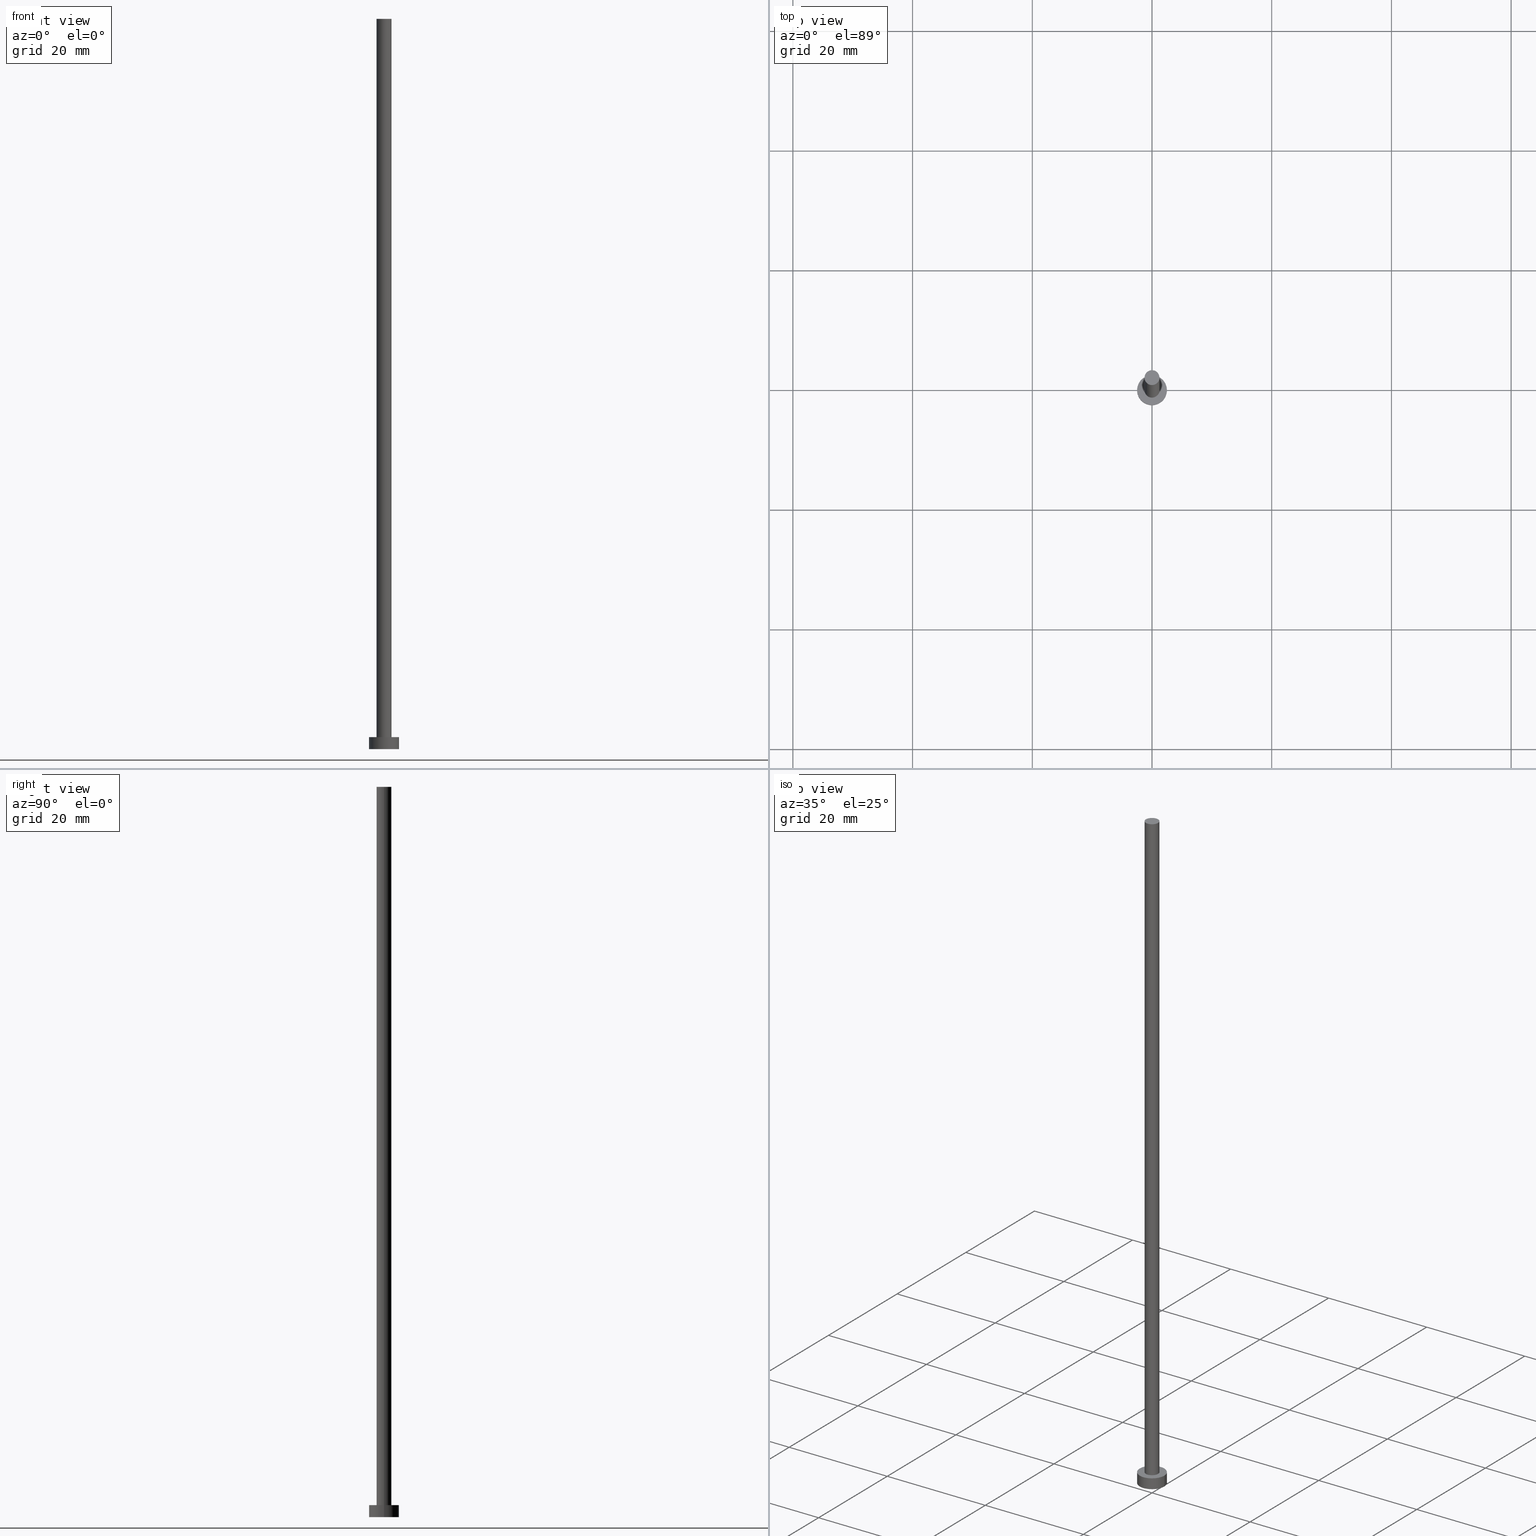
[diagram: canonical four-view strip — front | top / right | iso, engineering-drawing reading convention]
A machine part, canonical four-view strip (front | top / right | iso — engineering-drawing reading convention). The complete STEP part file that produces these views, byte-faithful:
ISO-10303-21;
HEADER;
FILE_DESCRIPTION (( 'STEP AP203' ),
    '1' );
FILE_NAME ('72eb.STEP',
    '2023-03-03T05:25:14',
    ( '' ),
    ( '' ),
    'SwSTEP 2.0',
    'SolidWorks 2019',
    '' );
FILE_SCHEMA (( 'CONFIG_CONTROL_DESIGN' ));
ENDSEC;

DATA;
#1 = CARTESIAN_POINT ( 'NONE',  ( 0.000000000000000000, 0.000000000000000000, 0.000000000000000000 ) ) ;
#2 = CC_DESIGN_DATE_AND_TIME_ASSIGNMENT ( #215, #195, ( #171 ) ) ;
#3 = CALENDAR_DATE ( 2023, 3, 3 ) ;
#4 = EDGE_LOOP ( 'NONE', ( #46, #227, #146, #90 ) ) ;
#5 = VERTEX_POINT ( 'NONE', #32 ) ;
#6 = CC_DESIGN_PERSON_AND_ORGANIZATION_ASSIGNMENT ( #68, #127, ( #255 ) ) ;
#7 = EDGE_LOOP ( 'NONE', ( #69, #182, #87, #202 ) ) ;
#8 = CIRCLE ( 'NONE', #151, 2.500000000000000000 ) ;
#9 = AXIS2_PLACEMENT_3D ( 'NONE', #34, #72, #148 ) ;
#10 = ORIENTED_EDGE ( 'NONE', *, *, #185, .F. ) ;
#11 = FACE_BOUND ( 'NONE', #110, .T. ) ;
#12 = DIRECTION ( 'NONE',  ( 1.000000000000000000, 0.000000000000000000, -0.000000000000000000 ) ) ;
#13 = CIRCLE ( 'NONE', #106, 1.250000000000000000 ) ;
#14 = FACE_OUTER_BOUND ( 'NONE', #224, .T. ) ;
#15 = DIRECTION ( 'NONE',  ( -0.000000000000000000, -0.000000000000000000, -1.000000000000000000 ) ) ;
#16 = CARTESIAN_POINT ( 'NONE',  ( -1.250000000000000000, 0.000000000000000000, 122.0000000000000000 ) ) ;
#17 = DIRECTION ( 'NONE',  ( 0.000000000000000000, 0.000000000000000000, 1.000000000000000000 ) ) ;
#18 = PERSON_AND_ORGANIZATION ( #199, #188 ) ;
#19 = CARTESIAN_POINT ( 'NONE',  ( 0.000000000000000000, 0.000000000000000000, 0.000000000000000000 ) ) ;
#20 = APPROVAL_PERSON_ORGANIZATION ( #24, #165, #84 ) ;
#21 = CALENDAR_DATE ( 2023, 3, 3 ) ;
#22 = ADVANCED_FACE ( 'NONE', ( #11, #73 ), #130, .T. ) ;
#23 = PRODUCT_DEFINITION_SHAPE ( 'NONE', 'NONE',  #171 ) ;
#24 = PERSON_AND_ORGANIZATION ( #199, #188 ) ;
#25 = PERSON_AND_ORGANIZATION_ROLE ( 'design_supplier' ) ;
#26 = EDGE_LOOP ( 'NONE', ( #163, #108 ) ) ;
#27 = EDGE_CURVE ( 'NONE', #248, #145, #8, .T. ) ;
#28 = APPROVAL_DATE_TIME ( #201, #165 ) ;
#29 = ORIENTED_EDGE ( 'NONE', *, *, #229, .T. ) ;
#30 = ORIENTED_EDGE ( 'NONE', *, *, #157, .T. ) ;
#31 = AXIS2_PLACEMENT_3D ( 'NONE', #19, #78, #103 ) ;
#32 = CARTESIAN_POINT ( 'NONE',  ( -1.250000000000000000, 0.000000000000000000, 2.000000000000000000 ) ) ;
#33 = EDGE_CURVE ( 'NONE', #5, #86, #253, .T. ) ;
#34 = CARTESIAN_POINT ( 'NONE',  ( 0.000000000000000000, 0.000000000000000000, 2.000000000000000000 ) ) ;
#35 = CARTESIAN_POINT ( 'NONE',  ( 0.000000000000000000, 0.000000000000000000, 2.000000000000000000 ) ) ;
#36 = APPROVAL_PERSON_ORGANIZATION ( #18, #48, #101 ) ;
#37 = CYLINDRICAL_SURFACE ( 'NONE', #9, 2.500000000000000000 ) ;
#38 = CC_DESIGN_PERSON_AND_ORGANIZATION_ASSIGNMENT ( #140, #43, ( #171 ) ) ;
#39 = CARTESIAN_POINT ( 'NONE',  ( 2.500000000000000000, 3.061616997868383141E-16, 2.000000000000000000 ) ) ;
#40 = PLANE ( 'NONE',  #98 ) ;
#41 = DIRECTION ( 'NONE',  ( 1.000000000000000000, 0.000000000000000000, 0.000000000000000000 ) ) ;
#42 = APPLICATION_PROTOCOL_DEFINITION ( 'international standard', 'config_control_design', 1994, #158 ) ;
#43 = PERSON_AND_ORGANIZATION_ROLE ( 'creator' ) ;
#44 = LOCAL_TIME ( 6, 25, 14.00000000000000000, #159 ) ;
#45 = COORDINATED_UNIVERSAL_TIME_OFFSET ( 1, 0, .AHEAD. ) ;
#46 = ORIENTED_EDGE ( 'NONE', *, *, #27, .F. ) ;
#47 = AXIS2_PLACEMENT_3D ( 'NONE', #79, #58, #194 ) ;
#48 = APPROVAL ( #119, 'NEUR�EN�' ) ;
#49 = CALENDAR_DATE ( 2023, 3, 3 ) ;
#50 = ORIENTED_EDGE ( 'NONE', *, *, #229, .F. ) ;
#51 = LOCAL_TIME ( 6, 25, 14.00000000000000000, #122 ) ;
#52 = DIRECTION ( 'NONE',  ( 1.000000000000000000, 0.000000000000000000, 0.000000000000000000 ) ) ;
#53 = CARTESIAN_POINT ( 'NONE',  ( -1.250000000000000000, 0.000000000000000000, 122.0000000000000000 ) ) ;
#54 = FACE_OUTER_BOUND ( 'NONE', #184, .T. ) ;
#55 = AXIS2_PLACEMENT_3D ( 'NONE', #114, #210, #154 ) ;
#56 = FACE_OUTER_BOUND ( 'NONE', #66, .T. ) ;
#57 = DIRECTION ( 'NONE',  ( 1.000000000000000000, 0.000000000000000000, 0.000000000000000000 ) ) ;
#58 = DIRECTION ( 'NONE',  ( 0.000000000000000000, 0.000000000000000000, 1.000000000000000000 ) ) ;
#59 = AXIS2_PLACEMENT_3D ( 'NONE', #205, #232, #12 ) ;
#60 = DIRECTION ( 'NONE',  ( 1.000000000000000000, 0.000000000000000000, 0.000000000000000000 ) ) ;
#61 = DIRECTION ( 'NONE',  ( 1.000000000000000000, 0.000000000000000000, 0.000000000000000000 ) ) ;
#62 = CARTESIAN_POINT ( 'NONE',  ( 0.000000000000000000, 0.000000000000000000, 0.000000000000000000 ) ) ;
#63 = LOCAL_TIME ( 6, 25, 14.00000000000000000, #183 ) ;
#64 = SECURITY_CLASSIFICATION_LEVEL ( 'unclassified' ) ;
#65 = ORIENTED_EDGE ( 'NONE', *, *, #77, .F. ) ;
#66 = EDGE_LOOP ( 'NONE', ( #65, #160, #30, #29 ) ) ;
#67 = CIRCLE ( 'NONE', #47, 2.500000000000000000 ) ;
#68 = PERSON_AND_ORGANIZATION ( #199, #188 ) ;
#69 = ORIENTED_EDGE ( 'NONE', *, *, #115, .F. ) ;
#70 = ORIENTED_EDGE ( 'NONE', *, *, #33, .F. ) ;
#71 = DIRECTION ( 'NONE',  ( -0.000000000000000000, -0.000000000000000000, -1.000000000000000000 ) ) ;
#72 = DIRECTION ( 'NONE',  ( -0.000000000000000000, -0.000000000000000000, -1.000000000000000000 ) ) ;
#73 = FACE_OUTER_BOUND ( 'NONE', #161, .T. ) ;
#74 = ADVANCED_FACE ( 'NONE', ( #56 ), #76, .T. ) ;
#75 = CYLINDRICAL_SURFACE ( 'NONE', #55, 1.250000000000000000 ) ;
#76 = CYLINDRICAL_SURFACE ( 'NONE', #173, 2.500000000000000000 ) ;
#77 = EDGE_CURVE ( 'NONE', #248, #144, #150, .T. ) ;
#78 = DIRECTION ( 'NONE',  ( 0.000000000000000000, 0.000000000000000000, 1.000000000000000000 ) ) ;
#79 = CARTESIAN_POINT ( 'NONE',  ( 0.000000000000000000, 0.000000000000000000, 2.000000000000000000 ) ) ;
#80 = MANIFOLD_SOLID_BREP ( 'P�idat vysunut�m3', #88 ) ;
#81 = VECTOR ( 'NONE', #250, 1000.000000000000000 ) ;
#82 = CALENDAR_DATE ( 2023, 3, 3 ) ;
#83 = DATE_AND_TIME ( #3, #133 ) ;
#84 = APPROVAL_ROLE ( '' ) ;
#85 = ORIENTED_EDGE ( 'NONE', *, *, #115, .T. ) ;
#86 = VERTEX_POINT ( 'NONE', #147 ) ;
#87 = ORIENTED_EDGE ( 'NONE', *, *, #139, .T. ) ;
#88 = CLOSED_SHELL ( 'NONE', ( #189, #142, #74, #22, #153, #118, #94 ) ) ;
#89 = AXIS2_PLACEMENT_3D ( 'NONE', #1, #156, #41 ) ;
#90 = ORIENTED_EDGE ( 'NONE', *, *, #157, .F. ) ;
#91 = ORIENTED_EDGE ( 'NONE', *, *, #244, .F. ) ;
#92 = DIRECTION ( 'NONE',  ( 0.000000000000000000, 0.000000000000000000, 1.000000000000000000 ) ) ;
#93 = CIRCLE ( 'NONE', #225, 1.250000000000000000 ) ;
#94 = ADVANCED_FACE ( 'NONE', ( #251 ), #40, .T. ) ;
#95 = FACE_OUTER_BOUND ( 'NONE', #4, .T. ) ;
#96 = DIRECTION ( 'NONE',  ( -1.000000000000000000, 0.000000000000000000, 0.000000000000000000 ) ) ;
#97 = LINE ( 'NONE', #192, #208 ) ;
#98 = AXIS2_PLACEMENT_3D ( 'NONE', #149, #92, #234 ) ;
#99 = APPROVAL_STATUS ( 'not_yet_approved' ) ;
#100 = PERSON_AND_ORGANIZATION ( #199, #188 ) ;
#101 = APPROVAL_ROLE ( '' ) ;
#102 = CIRCLE ( 'NONE', #168, 1.250000000000000000 ) ;
#103 = DIRECTION ( 'NONE',  ( 1.000000000000000000, 0.000000000000000000, 0.000000000000000000 ) ) ;
#104 = APPROVAL_ROLE ( '' ) ;
#105 = DESIGN_CONTEXT ( 'detailed design', #243, 'design' ) ;
#106 = AXIS2_PLACEMENT_3D ( 'NONE', #241, #176, #61 ) ;
#107 = VERTEX_POINT ( 'NONE', #167 ) ;
#108 = ORIENTED_EDGE ( 'NONE', *, *, #244, .T. ) ;
#109 = ORIENTED_EDGE ( 'NONE', *, *, #139, .F. ) ;
#110 = EDGE_LOOP ( 'NONE', ( #70, #10 ) ) ;
#111 = DIRECTION ( 'NONE',  ( -0.000000000000000000, -0.000000000000000000, -1.000000000000000000 ) ) ;
#112 = DIRECTION ( 'NONE',  ( 1.000000000000000000, 0.000000000000000000, 0.000000000000000000 ) ) ;
#113 = CARTESIAN_POINT ( 'NONE',  ( 2.500000000000000000, 3.061616997868383141E-16, 0.000000000000000000 ) ) ;
#114 = CARTESIAN_POINT ( 'NONE',  ( 0.000000000000000000, 0.000000000000000000, 122.0000000000000000 ) ) ;
#115 = EDGE_CURVE ( 'NONE', #222, #86, #187, .T. ) ;
#116 = CARTESIAN_POINT ( 'NONE',  ( 0.000000000000000000, 0.000000000000000000, 2.000000000000000000 ) ) ;
#117 =( LENGTH_UNIT ( ) NAMED_UNIT ( * ) SI_UNIT ( .MILLI., .METRE. ) );
#118 = ADVANCED_FACE ( 'NONE', ( #204 ), #75, .T. ) ;
#119 = APPROVAL_STATUS ( 'not_yet_approved' ) ;
#120 = AXIS2_PLACEMENT_3D ( 'NONE', #233, #17, #169 ) ;
#121 = VECTOR ( 'NONE', #71, 1000.000000000000000 ) ;
#122 = COORDINATED_UNIVERSAL_TIME_OFFSET ( 1, 0, .AHEAD. ) ;
#123 = PERSON_AND_ORGANIZATION_ROLE ( 'creator' ) ;
#124 = CIRCLE ( 'NONE', #31, 2.500000000000000000 ) ;
#125 = ORIENTED_EDGE ( 'NONE', *, *, #27, .T. ) ;
#126 = CC_DESIGN_PERSON_AND_ORGANIZATION_ASSIGNMENT ( #198, #25, ( #203 ) ) ;
#127 = PERSON_AND_ORGANIZATION_ROLE ( 'classification_officer' ) ;
#128 = VERTEX_POINT ( 'NONE', #53 ) ;
#129 = CC_DESIGN_SECURITY_CLASSIFICATION ( #255, ( #203 ) ) ;
#130 = PLANE ( 'NONE',  #120 ) ;
#131 = DIRECTION ( 'NONE',  ( 0.000000000000000000, 0.000000000000000000, 1.000000000000000000 ) ) ;
#132 = DIRECTION ( 'NONE',  ( 0.000000000000000000, 0.000000000000000000, 1.000000000000000000 ) ) ;
#133 = LOCAL_TIME ( 6, 25, 14.00000000000000000, #180 ) ;
#134 = DIRECTION ( 'NONE',  ( -0.000000000000000000, -0.000000000000000000, -1.000000000000000000 ) ) ;
#135 = CARTESIAN_POINT ( 'NONE',  ( 0.000000000000000000, 0.000000000000000000, 2.000000000000000000 ) ) ;
#136 = CARTESIAN_POINT ( 'NONE',  ( 1.250000000000000000, 1.530808498934191571E-16, 122.0000000000000000 ) ) ;
#137 = VECTOR ( 'NONE', #134, 1000.000000000000000 ) ;
#138 = CARTESIAN_POINT ( 'NONE',  ( 2.500000000000000000, 3.061616997868383141E-16, 2.000000000000000000 ) ) ;
#139 = EDGE_CURVE ( 'NONE', #128, #5, #191, .T. ) ;
#140 = PERSON_AND_ORGANIZATION ( #199, #188 ) ;
#141 = AXIS2_PLACEMENT_3D ( 'NONE', #190, #170, #57 ) ;
#142 = ADVANCED_FACE ( 'NONE', ( #95 ), #37, .T. ) ;
#143 = CC_DESIGN_APPROVAL ( #181, ( #203 ) ) ;
#144 = VERTEX_POINT ( 'NONE', #113 ) ;
#145 = VERTEX_POINT ( 'NONE', #186 ) ;
#146 = ORIENTED_EDGE ( 'NONE', *, *, #247, .T. ) ;
#147 = CARTESIAN_POINT ( 'NONE',  ( 1.250000000000000000, 1.530808498934191571E-16, 2.000000000000000000 ) ) ;
#148 = DIRECTION ( 'NONE',  ( -1.000000000000000000, 0.000000000000000000, 0.000000000000000000 ) ) ;
#149 = CARTESIAN_POINT ( 'NONE',  ( 0.000000000000000000, 0.000000000000000000, 122.0000000000000000 ) ) ;
#150 = LINE ( 'NONE', #39, #121 ) ;
#151 = AXIS2_PLACEMENT_3D ( 'NONE', #116, #131, #112 ) ;
#152 = LOCAL_TIME ( 6, 25, 14.00000000000000000, #45 ) ;
#153 = ADVANCED_FACE ( 'NONE', ( #54 ), #209, .F. ) ;
#154 = DIRECTION ( 'NONE',  ( -1.000000000000000000, 0.000000000000000000, 0.000000000000000000 ) ) ;
#155 = DATE_AND_TIME ( #82, #152 ) ;
#156 = DIRECTION ( 'NONE',  ( 0.000000000000000000, 0.000000000000000000, 1.000000000000000000 ) ) ;
#157 = EDGE_CURVE ( 'NONE', #145, #107, #97, .T. ) ;
#158 = APPLICATION_CONTEXT ( 'configuration controlled 3d designs of mechanical parts and assemblies' ) ;
#159 = COORDINATED_UNIVERSAL_TIME_OFFSET ( 1, 0, .AHEAD. ) ;
#160 = ORIENTED_EDGE ( 'NONE', *, *, #211, .F. ) ;
#161 = EDGE_LOOP ( 'NONE', ( #245, #125 ) ) ;
#162 = CC_DESIGN_APPROVAL ( #165, ( #255 ) ) ;
#163 = ORIENTED_EDGE ( 'NONE', *, *, #206, .T. ) ;
#164 = ORIENTED_EDGE ( 'NONE', *, *, #185, .T. ) ;
#165 = APPROVAL ( #226, 'NEUR�EN�' ) ;
#166 = CARTESIAN_POINT ( 'NONE',  ( 0.000000000000000000, 0.000000000000000000, 122.0000000000000000 ) ) ;
#167 = CARTESIAN_POINT ( 'NONE',  ( -2.500000000000000000, 0.000000000000000000, 0.000000000000000000 ) ) ;
#168 = AXIS2_PLACEMENT_3D ( 'NONE', #166, #249, #52 ) ;
#169 = DIRECTION ( 'NONE',  ( 1.000000000000000000, 0.000000000000000000, -0.000000000000000000 ) ) ;
#170 = DIRECTION ( 'NONE',  ( 0.000000000000000000, 0.000000000000000000, 1.000000000000000000 ) ) ;
#171 = PRODUCT_DEFINITION ( 'NEZN�M�', '', #203, #105 ) ;
#172 = DIRECTION ( 'NONE',  ( -0.000000000000000000, -0.000000000000000000, -1.000000000000000000 ) ) ;
#173 = AXIS2_PLACEMENT_3D ( 'NONE', #135, #111, #96 ) ;
#174 = DIRECTION ( 'NONE',  ( 0.000000000000000000, 0.000000000000000000, 1.000000000000000000 ) ) ;
#175 = CC_DESIGN_PERSON_AND_ORGANIZATION_ASSIGNMENT ( #100, #239, ( #218 ) ) ;
#176 = DIRECTION ( 'NONE',  ( 0.000000000000000000, 0.000000000000000000, 1.000000000000000000 ) ) ;
#177 = APPROVAL_PERSON_ORGANIZATION ( #197, #181, #104 ) ;
#178 = APPLICATION_PROTOCOL_DEFINITION ( 'international standard', 'config_control_design', 1994, #243 ) ;
#179 = ADVANCED_BREP_SHAPE_REPRESENTATION ( '72eb', ( #80, #89 ), #213 ) ;
#180 = COORDINATED_UNIVERSAL_TIME_OFFSET ( 1, 0, .AHEAD. ) ;
#181 = APPROVAL ( #99, 'NEUR�EN�' ) ;
#182 = ORIENTED_EDGE ( 'NONE', *, *, #206, .F. ) ;
#183 = COORDINATED_UNIVERSAL_TIME_OFFSET ( 1, 0, .AHEAD. ) ;
#184 = EDGE_LOOP ( 'NONE', ( #50, #231 ) ) ;
#185 = EDGE_CURVE ( 'NONE', #86, #5, #93, .T. ) ;
#186 = CARTESIAN_POINT ( 'NONE',  ( -2.500000000000000000, 0.000000000000000000, 2.000000000000000000 ) ) ;
#187 = LINE ( 'NONE', #235, #81 ) ;
#188 = ORGANIZATION ( 'NEUR�EN�', 'NEUR�EN�', '' ) ;
#189 = ADVANCED_FACE ( 'NONE', ( #14 ), #207, .T. ) ;
#190 = CARTESIAN_POINT ( 'NONE',  ( 0.000000000000000000, 0.000000000000000000, 2.000000000000000000 ) ) ;
#191 = LINE ( 'NONE', #16, #137 ) ;
#192 = CARTESIAN_POINT ( 'NONE',  ( -2.500000000000000000, 0.000000000000000000, 2.000000000000000000 ) ) ;
#193 = CIRCLE ( 'NONE', #196, 2.500000000000000000 ) ;
#194 = DIRECTION ( 'NONE',  ( 1.000000000000000000, 0.000000000000000000, 0.000000000000000000 ) ) ;
#195 = DATE_TIME_ROLE ( 'creation_date' ) ;
#196 = AXIS2_PLACEMENT_3D ( 'NONE', #62, #174, #60 ) ;
#197 = PERSON_AND_ORGANIZATION ( #199, #188 ) ;
#198 = PERSON_AND_ORGANIZATION ( #199, #188 ) ;
#199 = PERSON ( 'NEUR�EN�', 'NEUR�EN�', 'NEUR�EN�', ('NEUR�EN�'), ('NEUR�EN�'), ('NEUR�EN�') ) ;
#200 = UNCERTAINTY_MEASURE_WITH_UNIT (LENGTH_MEASURE( 1.000000000000000082E-05 ), #117, 'distance_accuracy_value', 'NONE');
#201 = DATE_AND_TIME ( #49, #44 ) ;
#202 = ORIENTED_EDGE ( 'NONE', *, *, #33, .T. ) ;
#203 = PRODUCT_DEFINITION_FORMATION_WITH_SPECIFIED_SOURCE ( 'LIBOVOLN�', '', #218, .NOT_KNOWN. ) ;
#204 = FACE_OUTER_BOUND ( 'NONE', #7, .T. ) ;
#205 = CARTESIAN_POINT ( 'NONE',  ( 0.000000000000000000, 0.000000000000000000, 0.000000000000000000 ) ) ;
#206 = EDGE_CURVE ( 'NONE', #128, #222, #102, .T. ) ;
#207 = CYLINDRICAL_SURFACE ( 'NONE', #240, 1.250000000000000000 ) ;
#208 = VECTOR ( 'NONE', #172, 1000.000000000000000 ) ;
#209 = PLANE ( 'NONE',  #59 ) ;
#210 = DIRECTION ( 'NONE',  ( -0.000000000000000000, -0.000000000000000000, -1.000000000000000000 ) ) ;
#211 = EDGE_CURVE ( 'NONE', #145, #248, #67, .T. ) ;
#212 =( NAMED_UNIT ( * ) SI_UNIT ( $, .STERADIAN. ) SOLID_ANGLE_UNIT ( ) );
#213 =( GEOMETRIC_REPRESENTATION_CONTEXT ( 3 ) GLOBAL_UNCERTAINTY_ASSIGNED_CONTEXT ( ( #200 ) ) GLOBAL_UNIT_ASSIGNED_CONTEXT ( ( #117, #238, #212 ) ) REPRESENTATION_CONTEXT ( 'NONE', 'WORKASPACE' ) );
#214 = MECHANICAL_CONTEXT ( 'NONE', #158, 'mechanical' ) ;
#215 = DATE_AND_TIME ( #21, #51 ) ;
#216 = CC_DESIGN_DATE_AND_TIME_ASSIGNMENT ( #228, #223, ( #255 ) ) ;
#217 = APPROVAL_DATE_TIME ( #155, #48 ) ;
#218 = PRODUCT ( '72eb', '72eb', '', ( #214 ) ) ;
#219 = PERSON_AND_ORGANIZATION ( #199, #188 ) ;
#220 = SHAPE_DEFINITION_REPRESENTATION ( #23, #179 ) ;
#221 = CC_DESIGN_PERSON_AND_ORGANIZATION_ASSIGNMENT ( #219, #123, ( #203 ) ) ;
#222 = VERTEX_POINT ( 'NONE', #136 ) ;
#223 = DATE_TIME_ROLE ( 'classification_date' ) ;
#224 = EDGE_LOOP ( 'NONE', ( #91, #85, #164, #109 ) ) ;
#225 = AXIS2_PLACEMENT_3D ( 'NONE', #35, #132, #254 ) ;
#226 = APPROVAL_STATUS ( 'not_yet_approved' ) ;
#227 = ORIENTED_EDGE ( 'NONE', *, *, #77, .T. ) ;
#228 = DATE_AND_TIME ( #230, #63 ) ;
#229 = EDGE_CURVE ( 'NONE', #107, #144, #124, .T. ) ;
#230 = CALENDAR_DATE ( 2023, 3, 3 ) ;
#231 = ORIENTED_EDGE ( 'NONE', *, *, #247, .F. ) ;
#232 = DIRECTION ( 'NONE',  ( 0.000000000000000000, 0.000000000000000000, 1.000000000000000000 ) ) ;
#233 = CARTESIAN_POINT ( 'NONE',  ( 0.000000000000000000, 0.000000000000000000, 2.000000000000000000 ) ) ;
#234 = DIRECTION ( 'NONE',  ( 1.000000000000000000, 0.000000000000000000, -0.000000000000000000 ) ) ;
#235 = CARTESIAN_POINT ( 'NONE',  ( 1.250000000000000000, 1.530808498934191571E-16, 122.0000000000000000 ) ) ;
#236 = PRODUCT_RELATED_PRODUCT_CATEGORY ( 'detail', '', ( #218 ) ) ;
#237 = CARTESIAN_POINT ( 'NONE',  ( 0.000000000000000000, 0.000000000000000000, 122.0000000000000000 ) ) ;
#238 =( NAMED_UNIT ( * ) PLANE_ANGLE_UNIT ( ) SI_UNIT ( $, .RADIAN. ) );
#239 = PERSON_AND_ORGANIZATION_ROLE ( 'design_owner' ) ;
#240 = AXIS2_PLACEMENT_3D ( 'NONE', #237, #15, #252 ) ;
#241 = CARTESIAN_POINT ( 'NONE',  ( 0.000000000000000000, 0.000000000000000000, 122.0000000000000000 ) ) ;
#242 = APPROVAL_DATE_TIME ( #83, #181 ) ;
#243 = APPLICATION_CONTEXT ( 'configuration controlled 3d designs of mechanical parts and assemblies' ) ;
#244 = EDGE_CURVE ( 'NONE', #222, #128, #13, .T. ) ;
#245 = ORIENTED_EDGE ( 'NONE', *, *, #211, .T. ) ;
#246 = CC_DESIGN_APPROVAL ( #48, ( #171 ) ) ;
#247 = EDGE_CURVE ( 'NONE', #144, #107, #193, .T. ) ;
#248 = VERTEX_POINT ( 'NONE', #138 ) ;
#249 = DIRECTION ( 'NONE',  ( 0.000000000000000000, 0.000000000000000000, 1.000000000000000000 ) ) ;
#250 = DIRECTION ( 'NONE',  ( -0.000000000000000000, -0.000000000000000000, -1.000000000000000000 ) ) ;
#251 = FACE_OUTER_BOUND ( 'NONE', #26, .T. ) ;
#252 = DIRECTION ( 'NONE',  ( -1.000000000000000000, 0.000000000000000000, 0.000000000000000000 ) ) ;
#253 = CIRCLE ( 'NONE', #141, 1.250000000000000000 ) ;
#254 = DIRECTION ( 'NONE',  ( 1.000000000000000000, 0.000000000000000000, 0.000000000000000000 ) ) ;
#255 = SECURITY_CLASSIFICATION ( '', '', #64 ) ;
ENDSEC;
END-ISO-10303-21;
